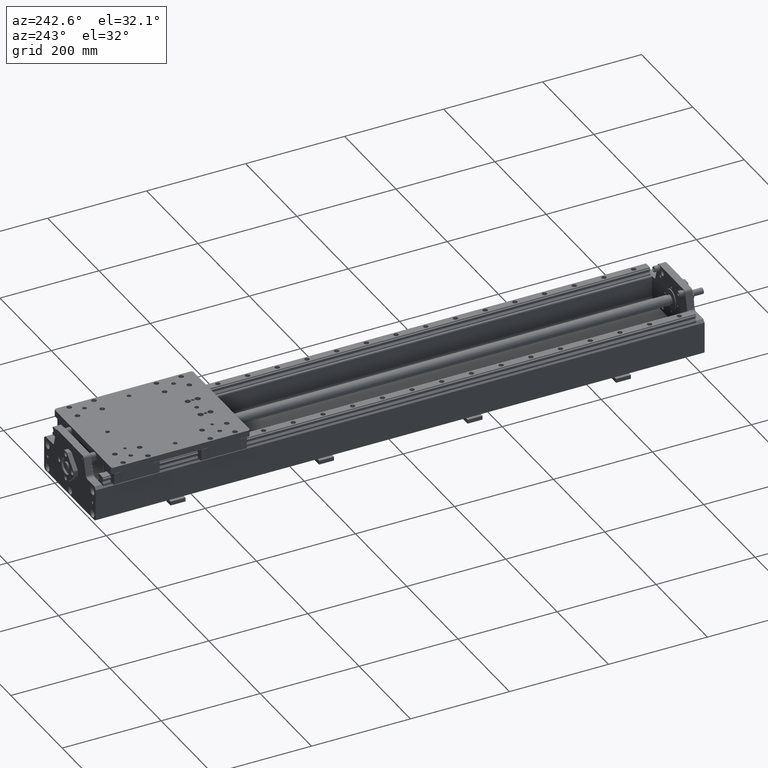
[diagram: clean part render]
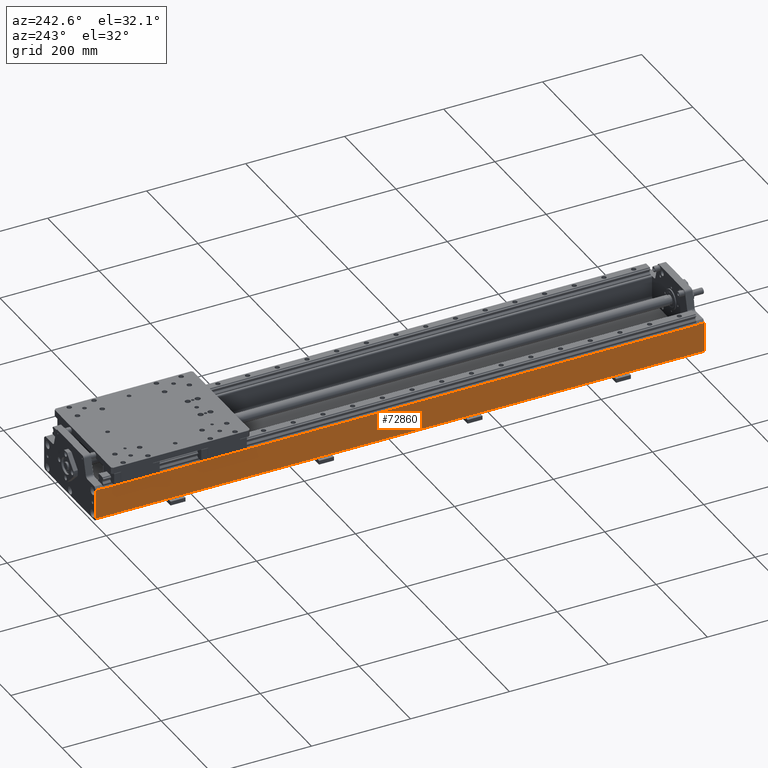
[diagram: same view with one face highlighted and labeled with its STEP entity id]
A machine part, auxiliary view. The second image highlights one B-rep face of the part: STEP entity #72860.
In plain terms, the highlighted planar face has unit normal (-1, 0, 0).
Its self-contained STEP definition (entity closure, byte-faithful):
#1471=CARTESIAN_POINT('',(11.750000000000043,1015.0,14.000000000000036));
#1472=VERTEX_POINT('',#1471);
#1480=CARTESIAN_POINT('',(11.750000000000078,1015.0,74.000000000000128));
#1481=VERTEX_POINT('',#1480);
#1482=CARTESIAN_POINT('',(11.750000000000078,1015.0,74.000000000000128));
#1483=DIRECTION('',(0.0,0.0,-1.0));
#1484=VECTOR('',#1483,60.000000000000092);
#1485=LINE('',#1482,#1484);
#1486=EDGE_CURVE('',#1481,#1472,#1485,.T.);
#6050=CARTESIAN_POINT('',(11.750000000000023,-215.0,74.0));
#6051=VERTEX_POINT('',#6050);
#6060=CARTESIAN_POINT('',(11.750000000000018,-215.0,13.999999999999975));
#6061=VERTEX_POINT('',#6060);
#6062=CARTESIAN_POINT('',(11.750000000000018,-215.0,13.999999999999975));
#6063=DIRECTION('',(0.0,0.0,1.0));
#6064=VECTOR('',#6063,60.000000000000028);
#6065=LINE('',#6062,#6064);
#6066=EDGE_CURVE('',#6061,#6051,#6065,.T.);
#71066=CARTESIAN_POINT('',(11.750000000000023,-200.0,74.0));
#71067=VERTEX_POINT('',#71066);
#71074=CARTESIAN_POINT('',(11.750000000000023,-200.0,74.0));
#71075=DIRECTION('',(0.0,-1.0,0.0));
#71076=VECTOR('',#71075,15.0);
#71077=LINE('',#71074,#71076);
#71078=EDGE_CURVE('',#71067,#6051,#71077,.T.);
#71127=CARTESIAN_POINT('',(11.750000000000078,1000.0,74.000000000000128));
#71128=VERTEX_POINT('',#71127);
#71129=CARTESIAN_POINT('',(11.750000000000078,1015.0,74.000000000000128));
#71130=DIRECTION('',(0.0,-1.0,0.0));
#71131=VECTOR('',#71130,15.0);
#71132=LINE('',#71129,#71131);
#71133=EDGE_CURVE('',#1481,#71128,#71132,.T.);
#71183=CARTESIAN_POINT('',(11.749999999999991,1000.0,73.200000000000102));
#71184=VERTEX_POINT('',#71183);
#71192=CARTESIAN_POINT('',(11.749999999999954,-200.0,73.200000000000102));
#71193=VERTEX_POINT('',#71192);
#71194=CARTESIAN_POINT('',(11.749999999999991,1000.0,73.200000000000102));
#71195=DIRECTION('',(0.0,-1.0,0.0));
#71196=VECTOR('',#71195,1200.0);
#71197=LINE('',#71194,#71196);
#71198=EDGE_CURVE('',#71184,#71193,#71197,.T.);
#72830=CARTESIAN_POINT('',(11.750000000000023,1002.500000000000000,8.000000000000075));
#72831=DIRECTION('',(-1.0,0.0,0.0));
#72832=DIRECTION('',(0.0,-1.0,0.0));
#72833=AXIS2_PLACEMENT_3D('',#72830,#72831,#72832);
#72834=PLANE('',#72833);
#72835=CARTESIAN_POINT('',(11.750000000000018,-215.0,13.999999999999975));
#72836=DIRECTION('',(0.0,1.0,0.0));
#72837=VECTOR('',#72836,1230.0);
#72838=LINE('',#72835,#72837);
#72839=EDGE_CURVE('',#6061,#1472,#72838,.T.);
#72840=ORIENTED_EDGE('',*,*,#72839,.F.);
#72841=ORIENTED_EDGE('',*,*,#6066,.T.);
#72842=ORIENTED_EDGE('',*,*,#71078,.F.);
#72843=CARTESIAN_POINT('',(11.750000000000023,-200.0,74.0));
#72844=DIRECTION('',(0.0,0.0,-1.0));
#72845=VECTOR('',#72844,0.799999999999898);
#72846=LINE('',#72843,#72845);
#72847=EDGE_CURVE('',#71067,#71193,#72846,.T.);
#72848=ORIENTED_EDGE('',*,*,#72847,.T.);
#72849=ORIENTED_EDGE('',*,*,#71198,.F.);
#72850=CARTESIAN_POINT('',(11.749999999999991,1000.0,73.200000000000102));
#72851=DIRECTION('',(1.088019E-013,0.0,1.0));
#72852=VECTOR('',#72851,0.800000000000026);
#72853=LINE('',#72850,#72852);
#72854=EDGE_CURVE('',#71184,#71128,#72853,.T.);
#72855=ORIENTED_EDGE('',*,*,#72854,.T.);
#72856=ORIENTED_EDGE('',*,*,#71133,.F.);
#72857=ORIENTED_EDGE('',*,*,#1486,.T.);
#72858=EDGE_LOOP('',(#72840,#72841,#72842,#72848,#72849,#72855,#72856,#72857));
#72859=FACE_OUTER_BOUND('',#72858,.T.);
#72860=ADVANCED_FACE('',(#72859),#72834,.T.);